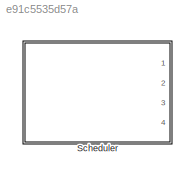
MODEL slx_e91c5535d57a
KIND model
CONFIG AbsTol = auto
CONFIG FixedStep = auto
CONFIG MaxStep = auto
CONFIG MinStep = auto
CONFIG RelTol = 1e-3
CONFIG SampleTimeConstraint = Unconstrained
CONFIG Solver = ode45
CONFIG SolverMode = Auto
CONFIG SolverName = ode45
CONFIG StartTime = 0.0
CONFIG StopTime = 10.0
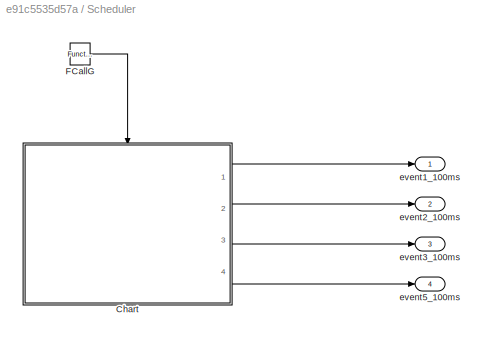
BLOCK [SubSystem] Scheduler 
  Ports = [0, 4]
  RequestExecContextInheritance = off
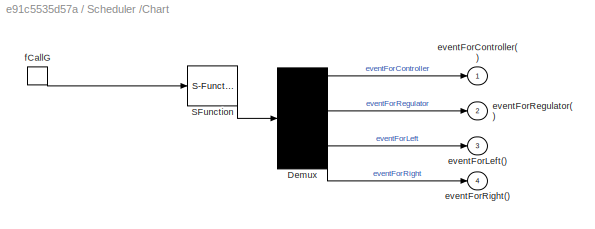
BLOCK [SubSystem] Scheduler /Chart
  ErrorFcn = Stateflow.Translate.translate
  PermitHierarchicalResolution = ExplicitOnly
  Ports = [0, 4, 0, 1]
  RequestExecContextInheritance = off
  SFBlockType = Chart
  TreatAsAtomicUnit = on
BLOCK [Demux] Scheduler /Chart/ Demux 
  Ports = [1, 4]
BLOCK [S-Function] Scheduler /Chart/ SFunction 
  EnableBusSupport = on
  FunctionName = sf_sfun
  PortCounts = [1 1]
  Ports = [1, 1]
  Tag = Stateflow S-Function Scheduler 3
BLOCK [Outport] Scheduler /Chart/eventForController()
  IconDisplay = Port number
BLOCK [Outport] Scheduler /Chart/eventForLeft()
  IconDisplay = Port number
  Port = 3
BLOCK [Outport] Scheduler /Chart/eventForRegulator()
  IconDisplay = Port number
  Port = 2
BLOCK [Outport] Scheduler /Chart/eventForRight()
  IconDisplay = Port number
  Port = 4
BLOCK [TriggerPort] Scheduler /Chart/fCallG
  Ports = [0, 1]
  ShowOutputPort = on
  StatesWhenEnabling = held
  TriggerType = function-call
BLOCK [Reference] Scheduler /FCallG  REF=simulink/Ports &
Subsystems/Function-Call
Generator
  Ports = [0, 1]
  SourceBlock = simulink/Ports &\nSubsystems/Function-Call\nGenerator
  SourceType = Function-Call Generator
  numberOfIterations = 1
  sample_time = 0.1
BLOCK [Outport] Scheduler /event1_100ms
  IconDisplay = Port number
BLOCK [Outport] Scheduler /event2_100ms
  IconDisplay = Port number
  Port = 2
BLOCK [Outport] Scheduler /event3_100ms 
  IconDisplay = Port number
  Port = 3
BLOCK [Outport] Scheduler /event5_100ms 
  IconDisplay = Port number
  Port = 4
LINE Scheduler /Chart:1 -> Scheduler /event1_100ms:1
LINE Scheduler /Chart:2 -> Scheduler /event2_100ms:1
LINE Scheduler /Chart:3 -> Scheduler /event3_100ms :1
LINE Scheduler /Chart:4 -> Scheduler /event5_100ms :1
LINE Scheduler /FCallG:1 -> Scheduler /Chart:trigger
CHART Scheduler
/Chart states=1 transitions=1
  STATE_LABEL 'Start\n\non every(1,fCallG): send(eventForController);\non every(1,fCallG): send(eventForRegulator);\non every(1,fCallG): send(eventForLeft);\non every(1,fCallG): send(eventForRight);'
